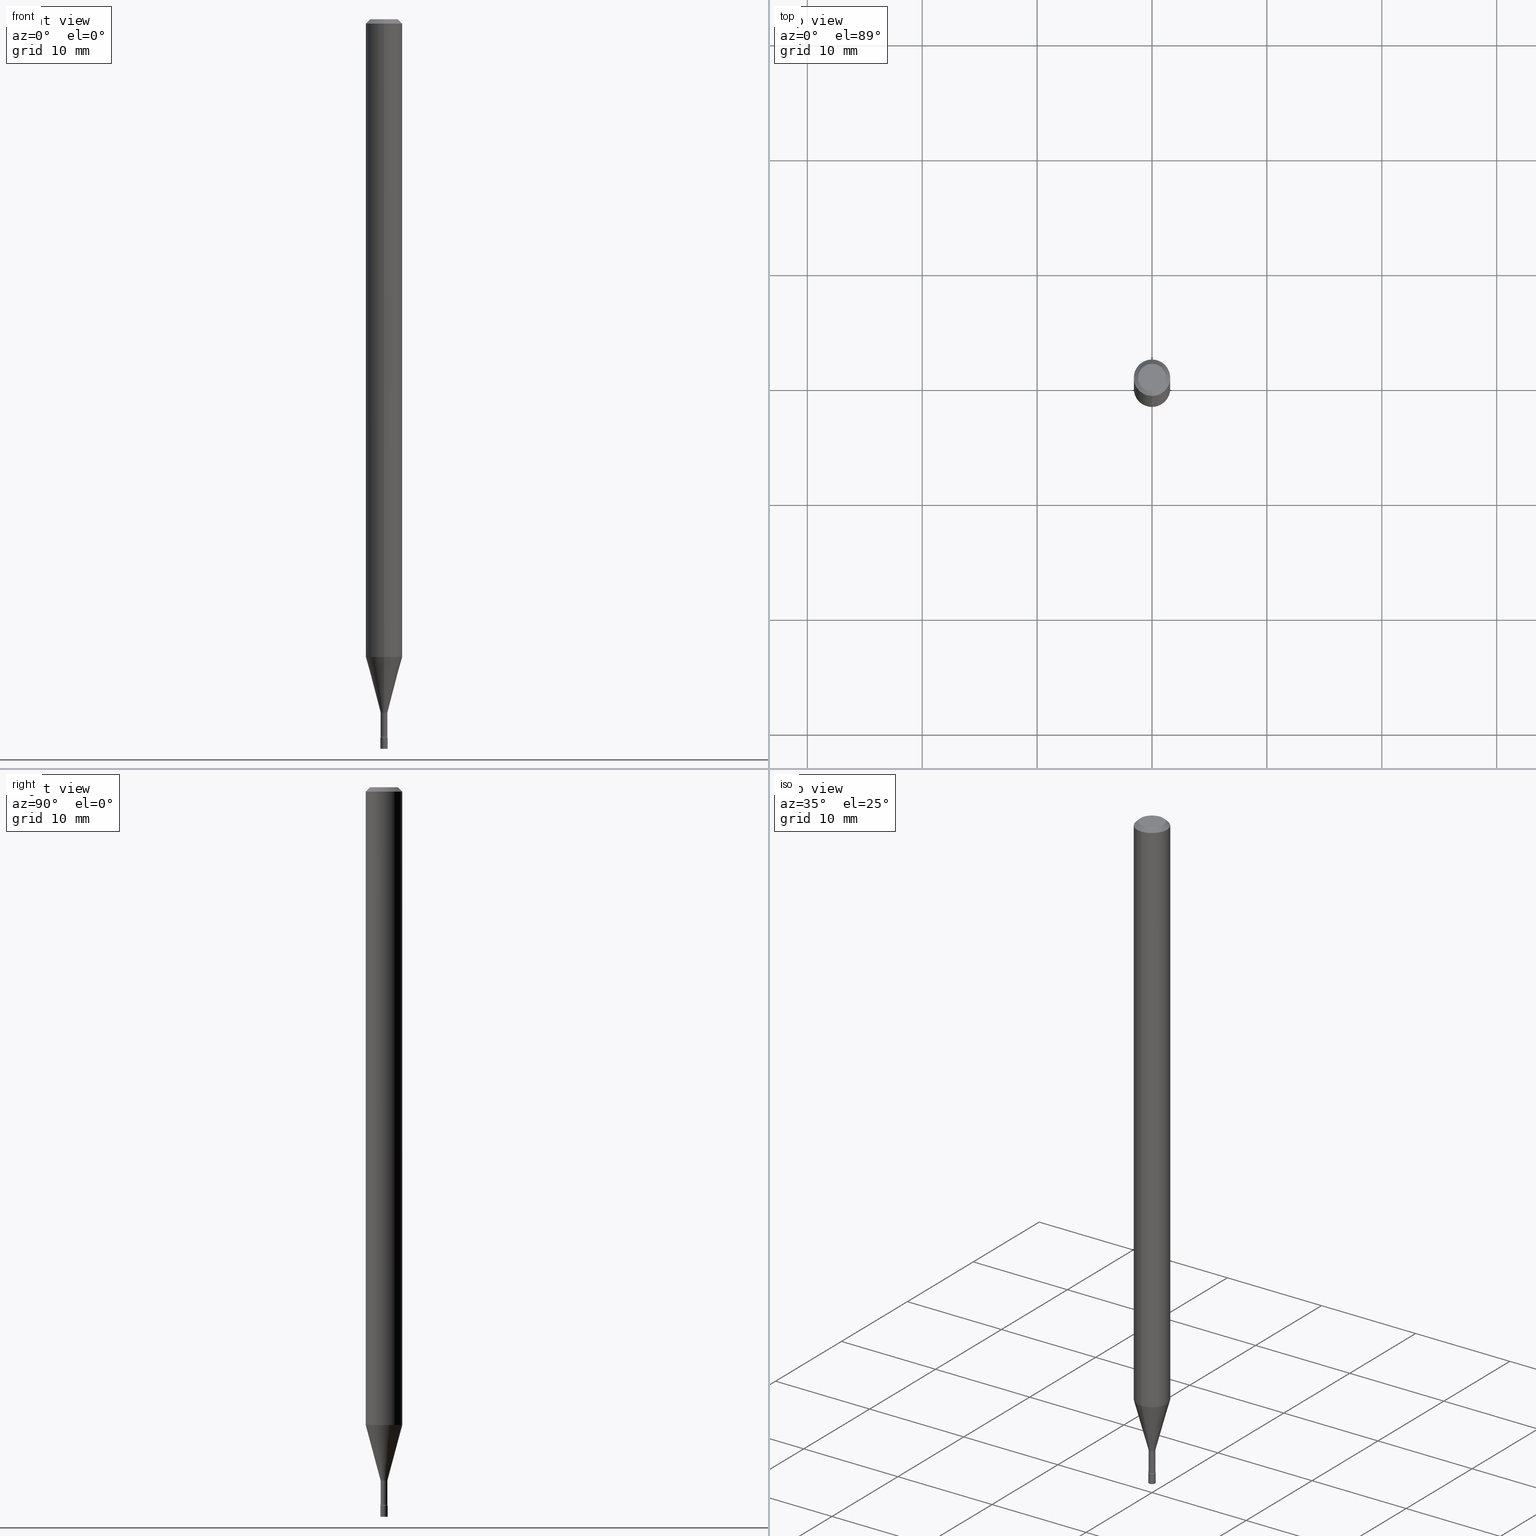
[diagram: canonical four-view strip — front | top / right | iso, engineering-drawing reading convention]
A machine part, canonical four-view strip (front | top / right | iso — engineering-drawing reading convention). The complete STEP part file that produces these views, byte-faithful:
ISO-10303-21;
HEADER;
FILE_DESCRIPTION (( 'STEP AP203' ),
    '1' );
FILE_NAME ('03538.STEP',
    '2024-03-08T21:43:07',
    ( '' ),
    ( '' ),
    'SwSTEP 2.0',
    'SolidWorks 2023',
    '' );
FILE_SCHEMA (( 'CONFIG_CONTROL_DESIGN' ));
ENDSEC;

DATA;
#1 = DIRECTION ( 'NONE',  ( 0.000000000000000000, 0.000000000000000000, 1.000000000000000000 ) ) ;
#2 = MANIFOLD_SOLID_BREP ( 'Body-Move/Copy2[2]', #292 ) ;
#3 = CARTESIAN_POINT ( 'NONE',  ( 0.000000000000000000, 0.000000000000000000, 0.000000000000000000 ) ) ;
#4 = DIRECTION ( 'NONE',  ( -6.982962677686265922E-15, -1.000000000000000000, 4.370956789862821150E-15 ) ) ;
#5 = LINE ( 'NONE', #243, #311 ) ;
#6 = MANIFOLD_SOLID_BREP ( 'Body-Move/Copy2[1]', #520 ) ;
#7 = LINE ( 'NONE', #294, #148 ) ;
#8 = CC_DESIGN_DATE_AND_TIME_ASSIGNMENT ( #399, #120, ( #197 ) ) ;
#9 = CARTESIAN_POINT ( 'NONE',  ( 1.900701818158869466E-16, 0.02674999999999143341, -2.457316251501201254 ) ) ;
#10 = AXIS2_PLACEMENT_3D ( 'NONE', #315, #114, #439 ) ;
#11 = ORIENTED_EDGE ( 'NONE', *, *, #219, .T. ) ;
#12 = CARTESIAN_POINT ( 'NONE',  ( 3.668111607376275313E-31, -5.237353187401242615E-17, -0.01500000000000003067 ) ) ;
#13 = DIRECTION ( 'NONE',  ( 1.000000000000000000, -6.982962677686265922E-15, 4.876176775795935793E-29 ) ) ;
#14 = AXIS2_PLACEMENT_3D ( 'NONE', #246, #44, #407 ) ;
#15 = CC_DESIGN_APPROVAL ( #84, ( #197 ) ) ;
#16 = DIRECTION ( 'NONE',  ( -2.445407738250845561E-29, 3.491568791600821507E-15, 1.000000000000000000 ) ) ;
#17 = ORIENTED_EDGE ( 'NONE', *, *, #286, .F. ) ;
#18 = DIRECTION ( 'NONE',  ( 1.000000000000000000, -6.982962677686294321E-15, 0.000000000000000000 ) ) ;
#19 = VERTEX_POINT ( 'NONE', #208 ) ;
#20 = VERTEX_POINT ( 'NONE', #444 ) ;
#21 = ORIENTED_EDGE ( 'NONE', *, *, #301, .F. ) ;
#22 = CARTESIAN_POINT ( 'NONE',  ( 6.113672015462842613E-29, -8.728703347107864943E-15, -2.500000000000000000 ) ) ;
#23 = EDGE_LOOP ( 'NONE', ( #71, #92, #357, #177 ) ) ;
#24 = EDGE_CURVE ( 'NONE', #351, #63, #5, .T. ) ;
#25 = CIRCLE ( 'NONE', #121, 0.01500000000000001853 ) ;
#26 = CARTESIAN_POINT ( 'NONE',  ( -0.01250000000000000069, -8.573547359699832444E-15, -2.462000000000000188 ) ) ;
#27 = CIRCLE ( 'NONE', #142, 0.01500000000000001853 ) ;
#28 = VERTEX_POINT ( 'NONE', #253 ) ;
#29 = EDGE_CURVE ( 'NONE', #309, #20, #198, .T. ) ;
#30 = EDGE_CURVE ( 'NONE', #373, #230, #250, .T. ) ;
#31 = MECHANICAL_CONTEXT ( 'NONE', #322, 'mechanical' ) ;
#32 = DIRECTION ( 'NONE',  ( -6.982962677686265922E-15, -1.000000000000000000, 0.000000000000000000 ) ) ;
#33 = CIRCLE ( 'NONE', #14, 0.06250000000000000000 ) ;
#34 = CARTESIAN_POINT ( 'NONE',  ( -4.364351673553912750E-16, -0.06250000000000005551, -0.01499999999999981209 ) ) ;
#35 = LOCAL_TIME ( 16, 43, 7.000000000000000000, #161 ) ;
#36 = EDGE_LOOP ( 'NONE', ( #435, #393, #503, #186 ) ) ;
#37 = CALENDAR_DATE ( 2024, 8, 3 ) ;
#38 = LINE ( 'NONE', #119, #302 ) ;
#39 = DIRECTION ( 'NONE',  ( -2.445407738250845561E-29, 3.491568791600821113E-15, 1.000000000000000000 ) ) ;
#40 = DIRECTION ( 'NONE',  ( 1.000000000000000000, -6.982962677686267499E-15, 4.876176775795936353E-29 ) ) ;
#41 = DIRECTION ( 'NONE',  ( 2.445407738250845561E-29, -3.491568791600821507E-15, -1.000000000000000000 ) ) ;
#42 = ADVANCED_FACE ( 'NONE', ( #167 ), #130, .T. ) ;
#43 = APPROVAL_ROLE ( '' ) ;
#44 = DIRECTION ( 'NONE',  ( -2.445407738250845561E-29, 3.491568791600821507E-15, 1.000000000000000000 ) ) ;
#45 = AXIS2_PLACEMENT_3D ( 'NONE', #352, #392, #384 ) ;
#46 = DIRECTION ( 'NONE',  ( -6.982962677686265922E-15, -1.000000000000000000, 3.491568791600821507E-15 ) ) ;
#47 = FACE_OUTER_BOUND ( 'NONE', #500, .T. ) ;
#48 = CC_DESIGN_DATE_AND_TIME_ASSIGNMENT ( #276, #72, ( #293 ) ) ;
#49 = ADVANCED_FACE ( 'NONE', ( #125 ), #82, .T. ) ;
#50 = DIRECTION ( 'NONE',  ( 2.438088387897960049E-29, -3.491481338843145188E-15, -1.000000000000000000 ) ) ;
#51 = CARTESIAN_POINT ( 'NONE',  ( -4.364351673553382734E-16, -0.06250000000000764666, -2.185598421515879686 ) ) ;
#52 = VECTOR ( 'NONE', #516, 39.37007874015748143 ) ;
#53 = AXIS2_PLACEMENT_3D ( 'NONE', #12, #173, #349 ) ;
#54 = DIRECTION ( 'NONE',  ( -2.445407738250845561E-29, 3.491568791600821507E-15, 1.000000000000000000 ) ) ;
#55 = ADVANCED_FACE ( 'NONE', ( #285 ), #447, .T. ) ;
#56 = EDGE_LOOP ( 'NONE', ( #462, #151, #261, #21 ) ) ;
#57 = CARTESIAN_POINT ( 'NONE',  ( 2.656048273965428500E-16, 0.01226111260565569683, -2.373092501787273267 ) ) ;
#58 = ORIENTED_EDGE ( 'NONE', *, *, #115, .F. ) ;
#59 = FACE_OUTER_BOUND ( 'NONE', #36, .T. ) ;
#60 = ORIENTED_EDGE ( 'NONE', *, *, #344, .F. ) ;
#61 = AXIS2_PLACEMENT_3D ( 'NONE', #160, #288, #485 ) ;
#62 = AXIS2_PLACEMENT_3D ( 'NONE', #150, #390, #306 ) ;
#63 = VERTEX_POINT ( 'NONE', #289 ) ;
#64 = DIRECTION ( 'NONE',  ( -2.445407738250845561E-29, 3.491568791600821507E-15, 1.000000000000000000 ) ) ;
#65 = EDGE_CURVE ( 'NONE', #227, #109, #33, .T. ) ;
#66 = ORIENTED_EDGE ( 'NONE', *, *, #245, .T. ) ;
#67 =( CONVERSION_BASED_UNIT ( 'INCH', #110 ) LENGTH_UNIT ( ) NAMED_UNIT ( #411 ) );
#68 = ORIENTED_EDGE ( 'NONE', *, *, #388, .F. ) ;
#69 = DIRECTION ( 'NONE',  ( -2.445468806185136597E-29, 3.491481338843145583E-15, 1.000000000000000000 ) ) ;
#70 = DIRECTION ( 'NONE',  ( -2.445407738250845561E-29, 3.491568791600821507E-15, 1.000000000000000000 ) ) ;
#71 = ORIENTED_EDGE ( 'NONE', *, *, #342, .F. ) ;
#72 = DATE_TIME_ROLE ( 'classification_date' ) ;
#73 = ORIENTED_EDGE ( 'NONE', *, *, #192, .T. ) ;
#74 = CARTESIAN_POINT ( 'NONE',  ( 5.812672538891162548E-29, -8.299370986330638369E-15, -2.376974787463811190 ) ) ;
#75 = COORDINATED_UNIVERSAL_TIME_OFFSET ( 5, 0, .BEHIND. ) ;
#76 = AXIS2_PLACEMENT_3D ( 'NONE', #117, #371, #475 ) ;
#77 = CARTESIAN_POINT ( 'NONE',  ( 4.440892098501163573E-16, 0.06249999999999995143, -0.01500000000000024751 ) ) ;
#78 = CIRCLE ( 'NONE', #199, 0.01174999999999999309 ) ;
#79 = ORIENTED_EDGE ( 'NONE', *, *, #202, .T. ) ;
#80 = APPROVAL_STATUS ( 'not_yet_approved' ) ;
#81 = CARTESIAN_POINT ( 'NONE',  ( 0.01250000000000000069, -8.683314089702904272E-15, -2.462000000000000188 ) ) ;
#82 = CYLINDRICAL_SURFACE ( 'NONE', #451, 0.01250000000000000069 ) ;
#83 = DIRECTION ( 'NONE',  ( -2.445407738250845561E-29, 3.491568791600821507E-15, 1.000000000000000000 ) ) ;
#84 = APPROVAL ( #80, 'UNSPECIFIED' ) ;
#85 = DIRECTION ( 'NONE',  ( -6.982962677686265922E-15, -1.000000000000000000, 3.483106191921935554E-15 ) ) ;
#86 = ORIENTED_EDGE ( 'NONE', *, *, #174, .T. ) ;
#87 = AXIS2_PLACEMENT_3D ( 'NONE', #204, #403, #518 ) ;
#88 = AXIS2_PLACEMENT_3D ( 'NONE', #287, #1, #200 ) ;
#89 = CARTESIAN_POINT ( 'NONE',  ( 8.348877145187187338E-17, 0.01174999999999170285, -2.376974787463811190 ) ) ;
#90 = DIRECTION ( 'NONE',  ( -2.445407738250845561E-29, 3.491568791600821507E-15, 1.000000000000000000 ) ) ;
#91 = EDGE_CURVE ( 'NONE', #283, #517, #320, .T. ) ;
#92 = ORIENTED_EDGE ( 'NONE', *, *, #437, .F. ) ;
#93 = ADVANCED_FACE ( 'NONE', ( #129 ), #153, .T. ) ;
#94 = DIRECTION ( 'NONE',  ( -1.000000000000000000, 6.982962677686265922E-15, -4.883557194083112901E-29 ) ) ;
#95 = CIRCLE ( 'NONE', #141, 0.01175000000000000350 ) ;
#96 = AXIS2_PLACEMENT_3D ( 'NONE', #343, #54, #493 ) ;
#97 = CIRCLE ( 'NONE', #398, 0.01250000000000000069 ) ;
#98 = DIRECTION ( 'NONE',  ( -6.982962677686266711E-15, -1.000000000000000000, 3.491568791600821113E-15 ) ) ;
#99 = ORIENTED_EDGE ( 'NONE', *, *, #301, .T. ) ;
#100 = ORIENTED_EDGE ( 'NONE', *, *, #184, .T. ) ;
#101 = CC_DESIGN_PERSON_AND_ORGANIZATION_ASSIGNMENT ( #514, #158, ( #272 ) ) ;
#102 =( LENGTH_UNIT ( ) NAMED_UNIT ( * ) SI_UNIT ( $, .METRE. ) );
#103 = ORIENTED_EDGE ( 'NONE', *, *, #239, .T. ) ;
#104 = CIRCLE ( 'NONE', #232, 0.01226111260566397840 ) ;
#105 =( NAMED_UNIT ( * ) SI_UNIT ( $, .STERADIAN. ) SOLID_ANGLE_UNIT ( ) );
#106 = ORIENTED_EDGE ( 'NONE', *, *, #478, .F. ) ;
#107 = ORIENTED_EDGE ( 'NONE', *, *, #473, .T. ) ;
#108 = CARTESIAN_POINT ( 'NONE',  ( 3.316907271900976096E-16, 0.04749999999999999362, -1.803043960619787143E-16 ) ) ;
#109 = VERTEX_POINT ( 'NONE', #34 ) ;
#110 = LENGTH_MEASURE_WITH_UNIT ( LENGTH_MEASURE( 0.02539999999999999897 ), #102 );
#111 = AXIS2_PLACEMENT_3D ( 'NONE', #74, #290, #32 ) ;
#112 = LOCAL_TIME ( 16, 43, 7.000000000000000000, #241 ) ;
#113 = APPROVAL_DATE_TIME ( #325, #144 ) ;
#114 = DIRECTION ( 'NONE',  ( -2.445407738250845561E-29, 3.491568791600821507E-15, 1.000000000000000000 ) ) ;
#115 = EDGE_CURVE ( 'NONE', #28, #517, #38, .T. ) ;
#116 = APPROVAL_DATE_TIME ( #511, #337 ) ;
#117 = CARTESIAN_POINT ( 'NONE',  ( 6.020744200827806517E-29, -8.596027056231825938E-15, -2.462000000000000188 ) ) ;
#118 = CALENDAR_DATE ( 2024, 8, 3 ) ;
#119 = CARTESIAN_POINT ( 'NONE',  ( -0.01250000000000000069, 8.881784197001252816E-17, -6.148668862818633278E-31 ) ) ;
#120 = DATE_TIME_ROLE ( 'creation_date' ) ;
#121 = AXIS2_PLACEMENT_3D ( 'NONE', #9, #455, #296 ) ;
#122 = CARTESIAN_POINT ( 'NONE',  ( 4.440892098501159629E-16, 0.06249999999999236722, -2.185598421515880130 ) ) ;
#123 = VECTOR ( 'NONE', #265, 39.37007874015748143 ) ;
#124 = EDGE_CURVE ( 'NONE', #63, #318, #415, .T. ) ;
#125 = FACE_OUTER_BOUND ( 'NONE', #394, .T. ) ;
#126 = PERSON_AND_ORGANIZATION ( #300, #176 ) ;
#127 = ORIENTED_EDGE ( 'NONE', *, *, #388, .T. ) ;
#128 = DIRECTION ( 'NONE',  ( -2.445468806185136877E-29, 3.491481338843145188E-15, 1.000000000000000000 ) ) ;
#129 = FACE_OUTER_BOUND ( 'NONE', #56, .T. ) ;
#130 = CYLINDRICAL_SURFACE ( 'NONE', #280, 0.06250000000000000000 ) ;
#131 = DIRECTION ( 'NONE',  ( -2.445407738250845561E-29, 3.491568791600821507E-15, 1.000000000000000000 ) ) ;
#132 = AXIS2_PLACEMENT_3D ( 'NONE', #3, #324, #242 ) ;
#133 =( GEOMETRIC_REPRESENTATION_CONTEXT ( 3 ) GLOBAL_UNCERTAINTY_ASSIGNED_CONTEXT ( ( #382 ) ) GLOBAL_UNIT_ASSIGNED_CONTEXT ( ( #67, #358, #105 ) ) REPRESENTATION_CONTEXT ( 'NONE', 'WORKASPACE' ) );
#134 = EDGE_LOOP ( 'NONE', ( #395, #147, #99, #221 ) ) ;
#135 = CYLINDRICAL_SURFACE ( 'NONE', #421, 0.01174999999999999656 ) ;
#136 = VERTEX_POINT ( 'NONE', #205 ) ;
#137 = ORIENTED_EDGE ( 'NONE', *, *, #389, .F. ) ;
#138 = CARTESIAN_POINT ( 'NONE',  ( 8.728703347113945828E-17, 0.01249999999999127157, -2.500000000000000000 ) ) ;
#139 = CARTESIAN_POINT ( 'NONE',  ( 8.712044494296936730E-17, 0.01226111260565569336, -2.373092501787273267 ) ) ;
#140 = VERTEX_POINT ( 'NONE', #211 ) ;
#141 = AXIS2_PLACEMENT_3D ( 'NONE', #366, #477, #163 ) ;
#142 = AXIS2_PLACEMENT_3D ( 'NONE', #298, #94, #218 ) ;
#143 = DIRECTION ( 'NONE',  ( -2.445407738250845561E-29, 3.491568791600821507E-15, 1.000000000000000000 ) ) ;
#144 = APPROVAL ( #476, 'UNSPECIFIED' ) ;
#145 = DIRECTION ( 'NONE',  ( 2.445407738250845281E-29, -3.491568791600821113E-15, -1.000000000000000000 ) ) ;
#146 = CARTESIAN_POINT ( 'NONE',  ( 5.812817695831295351E-29, -8.299163113330549419E-15, -2.376974787463811190 ) ) ;
#147 = ORIENTED_EDGE ( 'NONE', *, *, #184, .F. ) ;
#148 = VECTOR ( 'NONE', #374, 39.37007874015748143 ) ;
#149 = CONICAL_SURFACE ( 'NONE', #53, 0.06250000000000000000, 0.7853981633974483900 ) ;
#150 = CARTESIAN_POINT ( 'NONE',  ( 1.900701818158849252E-16, 0.02674999999999170402, -2.376974787463811190 ) ) ;
#151 = ORIENTED_EDGE ( 'NONE', *, *, #400, .T. ) ;
#152 = DIRECTION ( 'NONE',  ( -6.982962677686266711E-15, -1.000000000000000000, 3.491568791600821113E-15 ) ) ;
#153 = CONICAL_SURFACE ( 'NONE', #348, 0.06250000000000000000, 0.7853981633974483900 ) ;
#154 = PRODUCT_DEFINITION_FORMATION_WITH_SPECIFIED_SOURCE ( 'ANY', '', #272, .NOT_KNOWN. ) ;
#155 = CALENDAR_DATE ( 2024, 8, 3 ) ;
#156 = LINE ( 'NONE', #159, #271 ) ;
#157 = EDGE_LOOP ( 'NONE', ( #194, #310, #17, #346 ) ) ;
#158 = PERSON_AND_ORGANIZATION_ROLE ( 'design_owner' ) ;
#159 = CARTESIAN_POINT ( 'NONE',  ( 0.01250000000000000069, -8.728703347107834621E-17, 6.095220969744920617E-31 ) ) ;
#160 = CARTESIAN_POINT ( 'NONE',  ( 5.344679292683766373E-29, -7.631167239536863918E-15, -2.185598421515880130 ) ) ;
#161 = COORDINATED_UNIVERSAL_TIME_OFFSET ( 5, 0, .BEHIND. ) ;
#162 = VECTOR ( 'NONE', #424, 39.37007874015748143 ) ;
#163 = DIRECTION ( 'NONE',  ( -6.982962677686265922E-15, -1.000000000000000000, 0.000000000000000000 ) ) ;
#164 = CC_DESIGN_PERSON_AND_ORGANIZATION_ASSIGNMENT ( #327, #479, ( #197 ) ) ;
#165 = CALENDAR_DATE ( 2024, 8, 3 ) ;
#166 = DIRECTION ( 'NONE',  ( -2.445468806185136877E-29, 3.491481338843145188E-15, 1.000000000000000000 ) ) ;
#167 = FACE_OUTER_BOUND ( 'NONE', #157, .T. ) ;
#168 = DIRECTION ( 'NONE',  ( -6.982962677686265922E-15, -1.000000000000000000, 0.000000000000000000 ) ) ;
#169 = CARTESIAN_POINT ( 'NONE',  ( 8.728703347113853383E-17, 0.01249999999999140514, -2.462000000000000188 ) ) ;
#170 = AXIS2_PLACEMENT_3D ( 'NONE', #512, #277, #484 ) ;
#171 = DIRECTION ( 'NONE',  ( -6.982962677686265922E-15, -1.000000000000000000, 0.000000000000000000 ) ) ;
#172 = LINE ( 'NONE', #260, #162 ) ;
#173 = DIRECTION ( 'NONE',  ( 2.445407738250845561E-29, -3.491568791600821507E-15, -1.000000000000000000 ) ) ;
#174 = EDGE_CURVE ( 'NONE', #498, #416, #104, .T. ) ;
#175 = CIRCLE ( 'NONE', #87, 0.01250000000000000069 ) ;
#176 = ORGANIZATION ( 'UNSPECIFIED', 'UNSPECIFIED', '' ) ;
#177 = ORIENTED_EDGE ( 'NONE', *, *, #372, .T. ) ;
#178 = DESIGN_CONTEXT ( 'detailed design', #454, 'design' ) ;
#179 = DIRECTION ( 'NONE',  ( -6.982962677686265922E-15, -1.000000000000000000, 3.491568791600821507E-15 ) ) ;
#180 = ORIENTED_EDGE ( 'NONE', *, *, #495, .F. ) ;
#181 = DIRECTION ( 'NONE',  ( -6.982962677686265922E-15, -1.000000000000000000, 0.000000000000000000 ) ) ;
#182 = EDGE_LOOP ( 'NONE', ( #86, #489, #385, #432 ) ) ;
#183 = ORIENTED_EDGE ( 'NONE', *, *, #245, .F. ) ;
#184 = EDGE_CURVE ( 'NONE', #20, #309, #496, .T. ) ;
#185 = FACE_OUTER_BOUND ( 'NONE', #359, .T. ) ;
#186 = ORIENTED_EDGE ( 'NONE', *, *, #24, .F. ) ;
#187 = EDGE_CURVE ( 'NONE', #318, #63, #95, .T. ) ;
#188 = ORIENTED_EDGE ( 'NONE', *, *, #469, .F. ) ;
#189 = CIRCLE ( 'NONE', #329, 0.01226111260566397840 ) ;
#190 = TOROIDAL_SURFACE ( 'NONE', #210, 0.02675000000000000294, 0.01500000000000002720 ) ;
#191 = DIRECTION ( 'NONE',  ( -6.982962677686265133E-15, -1.000000000000000000, 0.000000000000000000 ) ) ;
#192 = EDGE_CURVE ( 'NONE', #373, #109, #365, .T. ) ;
#193 = EDGE_LOOP ( 'NONE', ( #68, #509, #405, #137 ) ) ;
#194 = ORIENTED_EDGE ( 'NONE', *, *, #30, .T. ) ;
#195 = APPROVAL_STATUS ( 'not_yet_approved' ) ;
#196 = CARTESIAN_POINT ( 'NONE',  ( 7.069614328771485378E-46, -1.009404050411999623E-31, -2.890975692187940755E-17 ) ) ;
#197 = PRODUCT_DEFINITION ( 'UNKNOWN', '', #154, #178 ) ;
#198 = CIRCLE ( 'NONE', #10, 0.04749999999999999362 ) ;
#199 = AXIS2_PLACEMENT_3D ( 'NONE', #220, #131, #171 ) ;
#200 = DIRECTION ( 'NONE',  ( 1.000000000000000000, 0.000000000000000000, 0.000000000000000000 ) ) ;
#201 = CARTESIAN_POINT ( 'NONE',  ( -8.561889171220213526E-17, -0.01226111260567226517, -2.373092501787273267 ) ) ;
#202 = EDGE_CURVE ( 'NONE', #498, #373, #362, .T. ) ;
#203 = PERSON_AND_ORGANIZATION_ROLE ( 'creator' ) ;
#204 = CARTESIAN_POINT ( 'NONE',  ( 6.113672015462842613E-29, -8.728703347107864943E-15, -2.500000000000000000 ) ) ;
#205 = CARTESIAN_POINT ( 'NONE',  ( 8.615330671097232540E-17, 0.01174999999999141315, -2.457316251501201254 ) ) ;
#206 = ADVANCED_FACE ( 'NONE', ( #333 ), #331, .F. ) ;
#207 = CARTESIAN_POINT ( 'NONE',  ( 5.344679292683766373E-29, -7.631167239536863918E-15, -2.185598421515880130 ) ) ;
#208 = CARTESIAN_POINT ( 'NONE',  ( 8.881784197007277742E-17, 0.01249999999999141555, -2.462000000000000188 ) ) ;
#209 = PERSON_AND_ORGANIZATION ( #300, #176 ) ;
#210 = AXIS2_PLACEMENT_3D ( 'NONE', #146, #434, #152 ) ;
#211 = CARTESIAN_POINT ( 'NONE',  ( -8.728703347101819556E-17, -0.01250000000000860492, -2.462000000000000188 ) ) ;
#212 = ORIENTED_EDGE ( 'NONE', *, *, #239, .F. ) ;
#213 = PLANE ( 'NONE',  #216 ) ;
#214 = CARTESIAN_POINT ( 'NONE',  ( 0.000000000000000000, 0.000000000000000000, 0.000000000000000000 ) ) ;
#215 = FACE_OUTER_BOUND ( 'NONE', #193, .T. ) ;
#216 = AXIS2_PLACEMENT_3D ( 'NONE', #138, #50, #345 ) ;
#217 = AXIS2_PLACEMENT_3D ( 'NONE', #456, #460, #303 ) ;
#218 = DIRECTION ( 'NONE',  ( -6.982962677686265133E-15, -1.000000000000000000, 0.000000000000000000 ) ) ;
#219 = EDGE_CURVE ( 'NONE', #383, #283, #156, .T. ) ;
#220 = CARTESIAN_POINT ( 'NONE',  ( 6.009140176750598743E-29, -8.579888734835109240E-15, -2.457316251501201254 ) ) ;
#221 = ORIENTED_EDGE ( 'NONE', *, *, #65, .T. ) ;
#222 = ORIENTED_EDGE ( 'NONE', *, *, #461, .T. ) ;
#223 = DIRECTION ( 'NONE',  ( -2.445468806185136597E-29, 3.491481338843145583E-15, 1.000000000000000000 ) ) ;
#224 = CIRCLE ( 'NONE', #61, 0.06250000000000000000 ) ;
#225 = APPROVAL_PERSON_ORGANIZATION ( #408, #144, #43 ) ;
#226 = CARTESIAN_POINT ( 'NONE',  ( -8.561889171220213526E-17, -0.01226111260567226517, -2.373092501787273267 ) ) ;
#227 = VERTEX_POINT ( 'NONE', #77 ) ;
#228 = ORIENTED_EDGE ( 'NONE', *, *, #291, .F. ) ;
#229 = ORIENTED_EDGE ( 'NONE', *, *, #24, .T. ) ;
#230 = VERTEX_POINT ( 'NONE', #122 ) ;
#231 = DIRECTION ( 'NONE',  ( 6.982962677686265922E-15, 1.000000000000000000, -3.491568791600821113E-15 ) ) ;
#232 = AXIS2_PLACEMENT_3D ( 'NONE', #336, #519, #367 ) ;
#233 = AXIS2_PLACEMENT_3D ( 'NONE', #108, #145, #231 ) ;
#234 = CARTESIAN_POINT ( 'NONE',  ( 5.803178767455656889E-29, -8.285815718822359440E-15, -2.373092501787273267 ) ) ;
#235 = PERSON_AND_ORGANIZATION ( #300, #176 ) ;
#236 = ADVANCED_FACE ( 'NONE', ( #279 ), #441, .T. ) ;
#237 = CARTESIAN_POINT ( 'NONE',  ( -4.364351673553916201E-16, -0.06250000000000000000, 2.182230494750513442E-16 ) ) ;
#238 = AXIS2_PLACEMENT_3D ( 'NONE', #169, #453, #499 ) ;
#239 = EDGE_CURVE ( 'NONE', #383, #28, #175, .T. ) ;
#240 = VECTOR ( 'NONE', #419, 39.37007874015748854 ) ;
#241 = COORDINATED_UNIVERSAL_TIME_OFFSET ( 5, 0, .BEHIND. ) ;
#242 = DIRECTION ( 'NONE',  ( -6.982962677686265922E-15, -1.000000000000000000, 3.491568791600821507E-15 ) ) ;
#243 = CARTESIAN_POINT ( 'NONE',  ( -8.204981146281360131E-17, -0.01174999999999999656, 4.102593330130963891E-17 ) ) ;
#244 = PERSON_AND_ORGANIZATION ( #300, #176 ) ;
#245 = EDGE_CURVE ( 'NONE', #230, #373, #224, .T. ) ;
#246 = CARTESIAN_POINT ( 'NONE',  ( 3.668111607376275313E-31, -5.237353187401242615E-17, -0.01500000000000003067 ) ) ;
#247 = DIRECTION ( 'NONE',  ( -2.445468806185136597E-29, 3.491481338843145583E-15, 1.000000000000000000 ) ) ;
#248 = CARTESIAN_POINT ( 'NONE',  ( 3.668111607376275313E-31, -5.237353187401242615E-17, -0.01500000000000003067 ) ) ;
#249 = EDGE_LOOP ( 'NONE', ( #212, #314 ) ) ;
#250 = CIRCLE ( 'NONE', #471, 0.06250000000000000000 ) ;
#251 = CONICAL_SURFACE ( 'NONE', #488, 0.01226111260566397840, 0.2617993877991499629 ) ;
#252 = CARTESIAN_POINT ( 'NONE',  ( 4.440892098500625669E-16, 0.06250000000000000000, -2.182230494750513442E-16 ) ) ;
#253 = CARTESIAN_POINT ( 'NONE',  ( -0.01250000000000000069, -8.573547359699832444E-15, -2.500000000000000000 ) ) ;
#254 = DIRECTION ( 'NONE',  ( -2.445407738250845561E-29, 3.491568791600821507E-15, 1.000000000000000000 ) ) ;
#255 = CC_DESIGN_PERSON_AND_ORGANIZATION_ASSIGNMENT ( #209, #203, ( #154 ) ) ;
#256 = CARTESIAN_POINT ( 'NONE',  ( -8.204981146275347532E-17, -0.01175000000000857303, -2.457316251501201254 ) ) ;
#257 = CARTESIAN_POINT ( 'NONE',  ( 0.000000000000000000, 0.000000000000000000, 0.000000000000000000 ) ) ;
#258 = LINE ( 'NONE', #139, #240 ) ;
#259 = AXIS2_PLACEMENT_3D ( 'NONE', #494, #458, #98 ) ;
#260 = CARTESIAN_POINT ( 'NONE',  ( -4.287811248607203282E-16, -0.06250000000000005551, -0.01499999999999981209 ) ) ;
#261 = ORIENTED_EDGE ( 'NONE', *, *, #286, .T. ) ;
#262 = DIRECTION ( 'NONE',  ( -6.982962677686265922E-15, -1.000000000000000000, 0.000000000000000000 ) ) ;
#263 = EDGE_LOOP ( 'NONE', ( #305, #267, #79, #183 ) ) ;
#264 = ORIENTED_EDGE ( 'NONE', *, *, #65, .F. ) ;
#265 = DIRECTION ( 'NONE',  ( -2.445407738250845561E-29, 3.491568791600821113E-15, 1.000000000000000000 ) ) ;
#266 = ADVANCED_BREP_SHAPE_REPRESENTATION ( '03538', ( #6, #2, #88 ), #133 ) ;
#267 = ORIENTED_EDGE ( 'NONE', *, *, #344, .T. ) ;
#268 = CARTESIAN_POINT ( 'NONE',  ( 5.803178767455656889E-29, -8.285815718822359440E-15, -2.373092501787273267 ) ) ;
#269 = ORIENTED_EDGE ( 'NONE', *, *, #187, .T. ) ;
#270 = CARTESIAN_POINT ( 'NONE',  ( 8.348877145181173506E-17, 0.01174999999999999656, -4.102593330130963891E-17 ) ) ;
#271 = VECTOR ( 'NONE', #128, 39.37007874015748143 ) ;
#272 = PRODUCT ( '03538', '03538', '', ( #31 ) ) ;
#273 = LOCAL_TIME ( 16, 43, 7.000000000000000000, #75 ) ;
#274 = ADVANCED_FACE ( 'NONE', ( #402 ), #449, .T. ) ;
#275 = CARTESIAN_POINT ( 'NONE',  ( 6.020744200827806517E-29, -8.596027056231825938E-15, -2.462000000000000188 ) ) ;
#276 = DATE_AND_TIME ( #165, #505 ) ;
#277 = DIRECTION ( 'NONE',  ( -2.445407738250845561E-29, 3.491568791600821507E-15, 1.000000000000000000 ) ) ;
#278 = PERSON_AND_ORGANIZATION_ROLE ( 'design_supplier' ) ;
#279 = FACE_OUTER_BOUND ( 'NONE', #426, .T. ) ;
#280 = AXIS2_PLACEMENT_3D ( 'NONE', #257, #330, #46 ) ;
#281 = AXIS2_PLACEMENT_3D ( 'NONE', #507, #223, #18 ) ;
#282 = SHAPE_DEFINITION_REPRESENTATION ( #397, #266 ) ;
#283 = VERTEX_POINT ( 'NONE', #81 ) ;
#284 = CARTESIAN_POINT ( 'NONE',  ( 0.000000000000000000, 0.000000000000000000, 0.000000000000000000 ) ) ;
#285 = FACE_OUTER_BOUND ( 'NONE', #380, .T. ) ;
#286 = EDGE_CURVE ( 'NONE', #109, #227, #363, .T. ) ;
#287 = CARTESIAN_POINT ( 'NONE',  ( 0.000000000000000000, 0.000000000000000000, 0.000000000000000000 ) ) ;
#288 = DIRECTION ( 'NONE',  ( -2.445407738250845561E-29, 3.491568791600821507E-15, 1.000000000000000000 ) ) ;
#289 = CARTESIAN_POINT ( 'NONE',  ( -8.204981146275552142E-17, -0.01175000000000830241, -2.376974787463811190 ) ) ;
#290 = DIRECTION ( 'NONE',  ( -2.445407738250845561E-29, 3.491568791600821507E-15, 1.000000000000000000 ) ) ;
#291 = EDGE_CURVE ( 'NONE', #19, #140, #463, .T. ) ;
#292 = CLOSED_SHELL ( 'NONE', ( #486, #459, #378, #93, #42, #515, #492, #236, #431, #483, #297, #391, #334, #206 ) ) ;
#293 = SECURITY_CLASSIFICATION ( '', '', #406 ) ;
#294 = CARTESIAN_POINT ( 'NONE',  ( 4.364351673553919652E-16, 0.06249999999999995143, -0.01500000000000024751 ) ) ;
#295 = DIRECTION ( 'NONE',  ( -2.438088387897960049E-29, 3.491481338843145188E-15, 1.000000000000000000 ) ) ;
#296 = DIRECTION ( 'NONE',  ( 7.105427357601001859E-15, 1.000000000000000000, 0.000000000000000000 ) ) ;
#297 = ADVANCED_FACE ( 'NONE', ( #47 ), #491, .F. ) ;
#298 = CARTESIAN_POINT ( 'NONE',  ( -1.867942516280476091E-16, -0.02675000000000858982, -2.457316251501201254 ) ) ;
#299 = ORIENTED_EDGE ( 'NONE', *, *, #219, .F. ) ;
#300 = PERSON ( 'UNSPECIFIED', 'UNSPECIFIED', 'UNSPECIFIED', ('UNSPECIFIED'), ('UNSPECIFIED'), ('UNSPECIFIED') ) ;
#301 = EDGE_CURVE ( 'NONE', #20, #227, #7, .T. ) ;
#302 = VECTOR ( 'NONE', #166, 39.37007874015748143 ) ;
#303 = DIRECTION ( 'NONE',  ( -6.982962677686265133E-15, -1.000000000000000000, 0.000000000000000000 ) ) ;
#304 = LINE ( 'NONE', #252, #123 ) ;
#305 = ORIENTED_EDGE ( 'NONE', *, *, #353, .F. ) ;
#306 = DIRECTION ( 'NONE',  ( 7.105427357601001859E-15, 1.000000000000000000, 0.000000000000000000 ) ) ;
#307 = EDGE_LOOP ( 'NONE', ( #188, #127, #229, #467 ) ) ;
#308 = ADVANCED_FACE ( 'NONE', ( #338 ), #213, .T. ) ;
#309 = VERTEX_POINT ( 'NONE', #377 ) ;
#310 = ORIENTED_EDGE ( 'NONE', *, *, #433, .T. ) ;
#311 = VECTOR ( 'NONE', #39, 39.37007874015748143 ) ;
#312 = ORIENTED_EDGE ( 'NONE', *, *, #115, .T. ) ;
#313 = DIRECTION ( 'NONE',  ( 1.000000000000000000, -6.982962677686216223E-15, 0.000000000000000000 ) ) ;
#314 = ORIENTED_EDGE ( 'NONE', *, *, #473, .F. ) ;
#315 = CARTESIAN_POINT ( 'NONE',  ( 7.069614328771485378E-46, -1.009404050411999623E-31, -2.890975692187940755E-17 ) ) ;
#316 = FACE_OUTER_BOUND ( 'NONE', #420, .T. ) ;
#317 = PRODUCT_RELATED_PRODUCT_CATEGORY ( 'detail', '', ( #272 ) ) ;
#318 = VERTEX_POINT ( 'NONE', #89 ) ;
#319 = APPLICATION_PROTOCOL_DEFINITION ( 'international standard', 'config_control_design', 1994, #322 ) ;
#320 = CIRCLE ( 'NONE', #76, 0.01250000000000000069 ) ;
#321 = LOCAL_TIME ( 16, 43, 7.000000000000000000, #448 ) ;
#322 = APPLICATION_CONTEXT ( 'configuration controlled 3d designs of mechanical parts and assemblies' ) ;
#323 = APPROVAL_DATE_TIME ( #440, #84 ) ;
#324 = DIRECTION ( 'NONE',  ( -2.445407738250845561E-29, 3.491568791600821507E-15, 1.000000000000000000 ) ) ;
#325 = DATE_AND_TIME ( #118, #321 ) ;
#326 = DIRECTION ( 'NONE',  ( -6.982962677686266711E-15, -1.000000000000000000, 3.491568791600821902E-15 ) ) ;
#327 = PERSON_AND_ORGANIZATION ( #300, #176 ) ;
#328 = CARTESIAN_POINT ( 'NONE',  ( 0.000000000000000000, 0.000000000000000000, 0.000000000000000000 ) ) ;
#329 = AXIS2_PLACEMENT_3D ( 'NONE', #423, #90, #168 ) ;
#330 = DIRECTION ( 'NONE',  ( -2.445407738250845561E-29, 3.491568791600821507E-15, 1.000000000000000000 ) ) ;
#331 = TOROIDAL_SURFACE ( 'NONE', #170, 0.02675000000000000294, 0.01500000000000002720 ) ;
#332 = PERSON_AND_ORGANIZATION ( #300, #176 ) ;
#333 = FACE_OUTER_BOUND ( 'NONE', #409, .T. ) ;
#334 = ADVANCED_FACE ( 'NONE', ( #418 ), #135, .T. ) ;
#335 = DIRECTION ( 'NONE',  ( -2.445407738250845561E-29, 3.491568791600821507E-15, 1.000000000000000000 ) ) ;
#336 = CARTESIAN_POINT ( 'NONE',  ( 5.803178767455656889E-29, -8.285815718822359440E-15, -2.373092501787273267 ) ) ;
#337 = APPROVAL ( #195, 'UNSPECIFIED' ) ;
#338 = FACE_OUTER_BOUND ( 'NONE', #249, .T. ) ;
#339 = AXIS2_PLACEMENT_3D ( 'NONE', #248, #414, #85 ) ;
#340 = VECTOR ( 'NONE', #425, 39.37007874015748143 ) ;
#341 = DIRECTION ( 'NONE',  ( -6.982962677686265133E-15, -1.000000000000000000, 0.000000000000000000 ) ) ;
#342 = EDGE_CURVE ( 'NONE', #136, #19, #25, .T. ) ;
#343 = CARTESIAN_POINT ( 'NONE',  ( 6.009290239977977822E-29, -8.579673835752433814E-15, -2.457316251501201254 ) ) ;
#344 = EDGE_CURVE ( 'NONE', #416, #498, #189, .T. ) ;
#345 = DIRECTION ( 'NONE',  ( -1.000000000000000000, 6.982962677686265922E-15, -4.876176775795935793E-29 ) ) ;
#346 = ORIENTED_EDGE ( 'NONE', *, *, #192, .F. ) ;
#347 = ORIENTED_EDGE ( 'NONE', *, *, #372, .F. ) ;
#348 = AXIS2_PLACEMENT_3D ( 'NONE', #410, #41, #438 ) ;
#349 = DIRECTION ( 'NONE',  ( 6.982962677686265922E-15, 1.000000000000000000, -3.483106191921935554E-15 ) ) ;
#350 = TOROIDAL_SURFACE ( 'NONE', #259, 0.02675000000000001335, 0.01500000000000001853 ) ;
#351 = VERTEX_POINT ( 'NONE', #256 ) ;
#352 = CARTESIAN_POINT ( 'NONE',  ( 6.009140176750598743E-29, -8.579888734835109240E-15, -2.457316251501201254 ) ) ;
#353 = EDGE_CURVE ( 'NONE', #416, #230, #258, .T. ) ;
#354 = CYLINDRICAL_SURFACE ( 'NONE', #376, 0.01174999999999999656 ) ;
#355 = FACE_OUTER_BOUND ( 'NONE', #263, .T. ) ;
#356 = ORIENTED_EDGE ( 'NONE', *, *, #495, .T. ) ;
#357 = ORIENTED_EDGE ( 'NONE', *, *, #389, .T. ) ;
#358 =( NAMED_UNIT ( * ) PLANE_ANGLE_UNIT ( ) SI_UNIT ( $, .RADIAN. ) );
#359 = EDGE_LOOP ( 'NONE', ( #100, #508 ) ) ;
#360 = ORIENTED_EDGE ( 'NONE', *, *, #124, .T. ) ;
#361 = APPROVAL_ROLE ( '' ) ;
#362 = LINE ( 'NONE', #201, #52 ) ;
#363 = CIRCLE ( 'NONE', #339, 0.06250000000000000000 ) ;
#364 = AXIS2_PLACEMENT_3D ( 'NONE', #504, #428, #191 ) ;
#365 = LINE ( 'NONE', #237, #481 ) ;
#366 = CARTESIAN_POINT ( 'NONE',  ( 5.812672538891162548E-29, -8.299370986330638369E-15, -2.376974787463811190 ) ) ;
#367 = DIRECTION ( 'NONE',  ( -6.982962677686265922E-15, -1.000000000000000000, 0.000000000000000000 ) ) ;
#368 = AXIS2_PLACEMENT_3D ( 'NONE', #196, #83, #326 ) ;
#369 = APPROVAL_PERSON_ORGANIZATION ( #126, #84, #445 ) ;
#370 = PERSON_AND_ORGANIZATION_ROLE ( 'classification_officer' ) ;
#371 = DIRECTION ( 'NONE',  ( -2.445468806185136597E-29, 3.491481338843145583E-15, 1.000000000000000000 ) ) ;
#372 = EDGE_CURVE ( 'NONE', #140, #19, #465, .T. ) ;
#373 = VERTEX_POINT ( 'NONE', #51 ) ;
#374 = DIRECTION ( 'NONE',  ( 4.937700262164548042E-15, 0.7071067811865451302, -0.7071067811865499042 ) ) ;
#375 = CARTESIAN_POINT ( 'NONE',  ( 6.020593851573582002E-29, -8.596242364921222575E-15, -2.462000000000000188 ) ) ;
#376 = AXIS2_PLACEMENT_3D ( 'NONE', #501, #70, #179 ) ;
#377 = CARTESIAN_POINT ( 'NONE',  ( -3.773273898774340269E-16, -0.04749999999999999362, 1.369397606791595968E-16 ) ) ;
#378 = ADVANCED_FACE ( 'NONE', ( #215 ), #386, .F. ) ;
#379 = FACE_OUTER_BOUND ( 'NONE', #23, .T. ) ;
#380 = EDGE_LOOP ( 'NONE', ( #502, #387 ) ) ;
#381 = FACE_OUTER_BOUND ( 'NONE', #134, .T. ) ;
#382 = UNCERTAINTY_MEASURE_WITH_UNIT (LENGTH_MEASURE( 1.000000000000000082E-05 ), #67, 'distance_accuracy_value', 'NONE');
#383 = VERTEX_POINT ( 'NONE', #487 ) ;
#384 = DIRECTION ( 'NONE',  ( -6.982962677686265922E-15, -1.000000000000000000, 0.000000000000000000 ) ) ;
#385 = ORIENTED_EDGE ( 'NONE', *, *, #30, .F. ) ;
#386 = TOROIDAL_SURFACE ( 'NONE', #96, 0.02675000000000001335, 0.01500000000000001853 ) ;
#387 = ORIENTED_EDGE ( 'NONE', *, *, #478, .T. ) ;
#388 = EDGE_CURVE ( 'NONE', #136, #351, #78, .T. ) ;
#389 = EDGE_CURVE ( 'NONE', #351, #140, #27, .T. ) ;
#390 = DIRECTION ( 'NONE',  ( 1.000000000000000000, -7.105427357601001070E-15, 4.926316579529479830E-29 ) ) ;
#391 = ADVANCED_FACE ( 'NONE', ( #379 ), #350, .F. ) ;
#392 = DIRECTION ( 'NONE',  ( -2.445407738250845561E-29, 3.491568791600821507E-15, 1.000000000000000000 ) ) ;
#393 = ORIENTED_EDGE ( 'NONE', *, *, #469, .T. ) ;
#394 = EDGE_LOOP ( 'NONE', ( #103, #312, #506, #299 ) ) ;
#395 = ORIENTED_EDGE ( 'NONE', *, *, #400, .F. ) ;
#396 = LINE ( 'NONE', #270, #340 ) ;
#397 = PRODUCT_DEFINITION_SHAPE ( 'NONE', 'NONE',  #197 ) ;
#398 = AXIS2_PLACEMENT_3D ( 'NONE', #22, #69, #313 ) ;
#399 = DATE_AND_TIME ( #470, #112 ) ;
#400 = EDGE_CURVE ( 'NONE', #309, #109, #172, .T. ) ;
#401 = ORIENTED_EDGE ( 'NONE', *, *, #433, .F. ) ;
#402 = FACE_OUTER_BOUND ( 'NONE', #464, .T. ) ;
#403 = DIRECTION ( 'NONE',  ( -2.445468806185136597E-29, 3.491481338843145583E-15, 1.000000000000000000 ) ) ;
#404 = AXIS2_PLACEMENT_3D ( 'NONE', #375, #254, #341 ) ;
#405 = ORIENTED_EDGE ( 'NONE', *, *, #291, .T. ) ;
#406 = SECURITY_CLASSIFICATION_LEVEL ( 'unclassified' ) ;
#407 = DIRECTION ( 'NONE',  ( -6.982962677686265922E-15, -1.000000000000000000, 3.483106191921935554E-15 ) ) ;
#408 = PERSON_AND_ORGANIZATION ( #300, #176 ) ;
#409 = EDGE_LOOP ( 'NONE', ( #180, #490, #222, #360 ) ) ;
#410 = CARTESIAN_POINT ( 'NONE',  ( 3.668111607376275313E-31, -5.237353187401242615E-17, -0.01500000000000003067 ) ) ;
#411 = DIMENSIONAL_EXPONENTS ( 1.000000000000000000, 0.000000000000000000, 0.000000000000000000, 0.000000000000000000, 0.000000000000000000, 0.000000000000000000, 0.000000000000000000 ) ;
#412 = CC_DESIGN_PERSON_AND_ORGANIZATION_ASSIGNMENT ( #332, #278, ( #154 ) ) ;
#413 = APPLICATION_PROTOCOL_DEFINITION ( 'international standard', 'config_control_design', 1994, #454 ) ;
#414 = DIRECTION ( 'NONE',  ( -2.445407738250845561E-29, 3.491568791600821507E-15, 1.000000000000000000 ) ) ;
#415 = CIRCLE ( 'NONE', #111, 0.01175000000000000350 ) ;
#416 = VERTEX_POINT ( 'NONE', #57 ) ;
#417 = DIRECTION ( 'NONE',  ( -6.982962677686265922E-15, -1.000000000000000000, 3.491568791600821507E-15 ) ) ;
#418 = FACE_OUTER_BOUND ( 'NONE', #307, .T. ) ;
#419 = DIRECTION ( 'NONE',  ( 1.839019923739597949E-15, 0.2588190451025246253, 0.9659258262890670910 ) ) ;
#420 = EDGE_LOOP ( 'NONE', ( #60, #356, #269, #430 ) ) ;
#421 = AXIS2_PLACEMENT_3D ( 'NONE', #214, #143, #417 ) ;
#422 = APPROVAL_PERSON_ORGANIZATION ( #235, #337, #361 ) ;
#423 = CARTESIAN_POINT ( 'NONE',  ( 5.803178767455656889E-29, -8.285815718822359440E-15, -2.373092501787273267 ) ) ;
#424 = DIRECTION ( 'NONE',  ( -4.851104656540964275E-15, -0.7071067811865500152, -0.7071067811865450192 ) ) ;
#425 = DIRECTION ( 'NONE',  ( -2.445407738250845561E-29, 3.491568791600821113E-15, 1.000000000000000000 ) ) ;
#426 = EDGE_LOOP ( 'NONE', ( #401, #66, #73, #264 ) ) ;
#427 = AXIS2_PLACEMENT_3D ( 'NONE', #275, #295, #13 ) ;
#428 = DIRECTION ( 'NONE',  ( -1.000000000000000000, 6.982962677686265922E-15, -4.883557194083112901E-29 ) ) ;
#429 = CC_DESIGN_SECURITY_CLASSIFICATION ( #293, ( #154 ) ) ;
#430 = ORIENTED_EDGE ( 'NONE', *, *, #461, .F. ) ;
#431 = ADVANCED_FACE ( 'NONE', ( #381 ), #149, .T. ) ;
#432 = ORIENTED_EDGE ( 'NONE', *, *, #202, .F. ) ;
#433 = EDGE_CURVE ( 'NONE', #230, #227, #304, .T. ) ;
#434 = DIRECTION ( 'NONE',  ( -2.445407738250845561E-29, 3.491568791600821507E-15, 1.000000000000000000 ) ) ;
#435 = ORIENTED_EDGE ( 'NONE', *, *, #437, .T. ) ;
#436 = CIRCLE ( 'NONE', #45, 0.01174999999999999309 ) ;
#437 = EDGE_CURVE ( 'NONE', #351, #136, #436, .T. ) ;
#438 = DIRECTION ( 'NONE',  ( 6.982962677686265922E-15, 1.000000000000000000, -3.483106191921935554E-15 ) ) ;
#439 = DIRECTION ( 'NONE',  ( -6.982962677686266711E-15, -1.000000000000000000, 3.491568791600821902E-15 ) ) ;
#440 = DATE_AND_TIME ( #155, #273 ) ;
#441 = CYLINDRICAL_SURFACE ( 'NONE', #132, 0.06250000000000000000 ) ;
#442 = AXIS2_PLACEMENT_3D ( 'NONE', #328, #480, #446 ) ;
#443 = CIRCLE ( 'NONE', #281, 0.01250000000000000069 ) ;
#444 = CARTESIAN_POINT ( 'NONE',  ( 3.840629472727447874E-16, 0.04749999999999999362, -1.947592745229184365E-16 ) ) ;
#445 = APPROVAL_ROLE ( '' ) ;
#446 = DIRECTION ( 'NONE',  ( 1.000000000000000000, -6.982962677686267499E-15, 4.876176775795936353E-29 ) ) ;
#447 = PLANE ( 'NONE',  #427 ) ;
#448 = COORDINATED_UNIVERSAL_TIME_OFFSET ( 5, 0, .BEHIND. ) ;
#449 = CYLINDRICAL_SURFACE ( 'NONE', #442, 0.01250000000000000069 ) ;
#450 = DIRECTION ( 'NONE',  ( -2.445407738250845561E-29, 3.491568791600821113E-15, 1.000000000000000000 ) ) ;
#451 = AXIS2_PLACEMENT_3D ( 'NONE', #284, #247, #40 ) ;
#452 = CIRCLE ( 'NONE', #62, 0.01500000000000002720 ) ;
#453 = DIRECTION ( 'NONE',  ( -2.445407738250845281E-29, 3.491568791600821113E-15, 1.000000000000000000 ) ) ;
#454 = APPLICATION_CONTEXT ( 'configuration controlled 3d designs of mechanical parts and assemblies' ) ;
#455 = DIRECTION ( 'NONE',  ( 1.000000000000000000, -7.105427357601001070E-15, 4.926316579529479830E-29 ) ) ;
#456 = CARTESIAN_POINT ( 'NONE',  ( 6.020593851573582002E-29, -8.596242364921222575E-15, -2.462000000000000188 ) ) ;
#457 = CIRCLE ( 'NONE', #364, 0.01500000000000002720 ) ;
#458 = DIRECTION ( 'NONE',  ( -2.445407738250845561E-29, 3.491568791600821507E-15, 1.000000000000000000 ) ) ;
#459 = ADVANCED_FACE ( 'NONE', ( #59 ), #354, .T. ) ;
#460 = DIRECTION ( 'NONE',  ( -2.445407738250845561E-29, 3.491568791600821507E-15, 1.000000000000000000 ) ) ;
#461 = EDGE_CURVE ( 'NONE', #498, #63, #457, .T. ) ;
#462 = ORIENTED_EDGE ( 'NONE', *, *, #29, .F. ) ;
#463 = CIRCLE ( 'NONE', #404, 0.01250000000000000069 ) ;
#464 = EDGE_LOOP ( 'NONE', ( #58, #107, #11, #106 ) ) ;
#465 = CIRCLE ( 'NONE', #217, 0.01250000000000000069 ) ;
#466 = PLANE ( 'NONE',  #233 ) ;
#467 = ORIENTED_EDGE ( 'NONE', *, *, #187, .F. ) ;
#468 = FACE_OUTER_BOUND ( 'NONE', #182, .T. ) ;
#469 = EDGE_CURVE ( 'NONE', #136, #318, #396, .T. ) ;
#470 = CALENDAR_DATE ( 2024, 8, 3 ) ;
#471 = AXIS2_PLACEMENT_3D ( 'NONE', #207, #335, #4 ) ;
#472 = CONICAL_SURFACE ( 'NONE', #497, 0.01226111260566397840, 0.2617993877991499629 ) ;
#473 = EDGE_CURVE ( 'NONE', #28, #383, #97, .T. ) ;
#474 = COORDINATED_UNIVERSAL_TIME_OFFSET ( 5, 0, .BEHIND. ) ;
#475 = DIRECTION ( 'NONE',  ( 1.000000000000000000, -6.982962677686294321E-15, 0.000000000000000000 ) ) ;
#476 = APPROVAL_STATUS ( 'not_yet_approved' ) ;
#477 = DIRECTION ( 'NONE',  ( -2.445407738250845561E-29, 3.491568791600821507E-15, 1.000000000000000000 ) ) ;
#478 = EDGE_CURVE ( 'NONE', #517, #283, #443, .T. ) ;
#479 = PERSON_AND_ORGANIZATION_ROLE ( 'creator' ) ;
#480 = DIRECTION ( 'NONE',  ( -2.445468806185136597E-29, 3.491481338843145583E-15, 1.000000000000000000 ) ) ;
#481 = VECTOR ( 'NONE', #450, 39.37007874015748143 ) ;
#482 = CC_DESIGN_APPROVAL ( #337, ( #293 ) ) ;
#483 = ADVANCED_FACE ( 'NONE', ( #185 ), #466, .F. ) ;
#484 = DIRECTION ( 'NONE',  ( -6.982962677686266711E-15, -1.000000000000000000, 3.491568791600821113E-15 ) ) ;
#485 = DIRECTION ( 'NONE',  ( -6.982962677686265922E-15, -1.000000000000000000, 4.370956789862821150E-15 ) ) ;
#486 = ADVANCED_FACE ( 'NONE', ( #316 ), #190, .F. ) ;
#487 = CARTESIAN_POINT ( 'NONE',  ( 0.01250000000000000069, -8.815990380578941699E-15, -2.500000000000000000 ) ) ;
#488 = AXIS2_PLACEMENT_3D ( 'NONE', #234, #16, #181 ) ;
#489 = ORIENTED_EDGE ( 'NONE', *, *, #353, .T. ) ;
#490 = ORIENTED_EDGE ( 'NONE', *, *, #174, .F. ) ;
#491 = PLANE ( 'NONE',  #238 ) ;
#492 = ADVANCED_FACE ( 'NONE', ( #355 ), #472, .T. ) ;
#493 = DIRECTION ( 'NONE',  ( -6.982962677686266711E-15, -1.000000000000000000, 3.491568791600821113E-15 ) ) ;
#494 = CARTESIAN_POINT ( 'NONE',  ( 6.009290239977977822E-29, -8.579673835752433814E-15, -2.457316251501201254 ) ) ;
#495 = EDGE_CURVE ( 'NONE', #416, #318, #452, .T. ) ;
#496 = CIRCLE ( 'NONE', #368, 0.04749999999999999362 ) ;
#497 = AXIS2_PLACEMENT_3D ( 'NONE', #268, #64, #262 ) ;
#498 = VERTEX_POINT ( 'NONE', #226 ) ;
#499 = DIRECTION ( 'NONE',  ( -6.982962677686265922E-15, -1.000000000000000000, 3.491568791600821113E-15 ) ) ;
#500 = EDGE_LOOP ( 'NONE', ( #347, #228 ) ) ;
#501 = CARTESIAN_POINT ( 'NONE',  ( 0.000000000000000000, 0.000000000000000000, 0.000000000000000000 ) ) ;
#502 = ORIENTED_EDGE ( 'NONE', *, *, #91, .T. ) ;
#503 = ORIENTED_EDGE ( 'NONE', *, *, #124, .F. ) ;
#504 = CARTESIAN_POINT ( 'NONE',  ( -1.867942516280495073E-16, -0.02675000000000830186, -2.376974787463811190 ) ) ;
#505 = LOCAL_TIME ( 16, 43, 7.000000000000000000, #474 ) ;
#506 = ORIENTED_EDGE ( 'NONE', *, *, #91, .F. ) ;
#507 = CARTESIAN_POINT ( 'NONE',  ( 6.020744200827806517E-29, -8.596027056231825938E-15, -2.462000000000000188 ) ) ;
#508 = ORIENTED_EDGE ( 'NONE', *, *, #29, .T. ) ;
#509 = ORIENTED_EDGE ( 'NONE', *, *, #342, .T. ) ;
#510 = CC_DESIGN_PERSON_AND_ORGANIZATION_ASSIGNMENT ( #244, #370, ( #293 ) ) ;
#511 = DATE_AND_TIME ( #37, #35 ) ;
#512 = CARTESIAN_POINT ( 'NONE',  ( 5.812817695831295351E-29, -8.299163113330549419E-15, -2.376974787463811190 ) ) ;
#513 = CC_DESIGN_APPROVAL ( #144, ( #154 ) ) ;
#514 = PERSON_AND_ORGANIZATION ( #300, #176 ) ;
#515 = ADVANCED_FACE ( 'NONE', ( #468 ), #251, .T. ) ;
#516 = DIRECTION ( 'NONE',  ( -1.807323732225328167E-15, -0.2588190451025179084, 0.9659258262890690894 ) ) ;
#517 = VERTEX_POINT ( 'NONE', #26 ) ;
#518 = DIRECTION ( 'NONE',  ( 1.000000000000000000, -6.982962677686216223E-15, 0.000000000000000000 ) ) ;
#519 = DIRECTION ( 'NONE',  ( -2.445407738250845561E-29, 3.491568791600821507E-15, 1.000000000000000000 ) ) ;
#520 = CLOSED_SHELL ( 'NONE', ( #49, #55, #274, #308 ) ) ;
ENDSEC;
END-ISO-10303-21;
